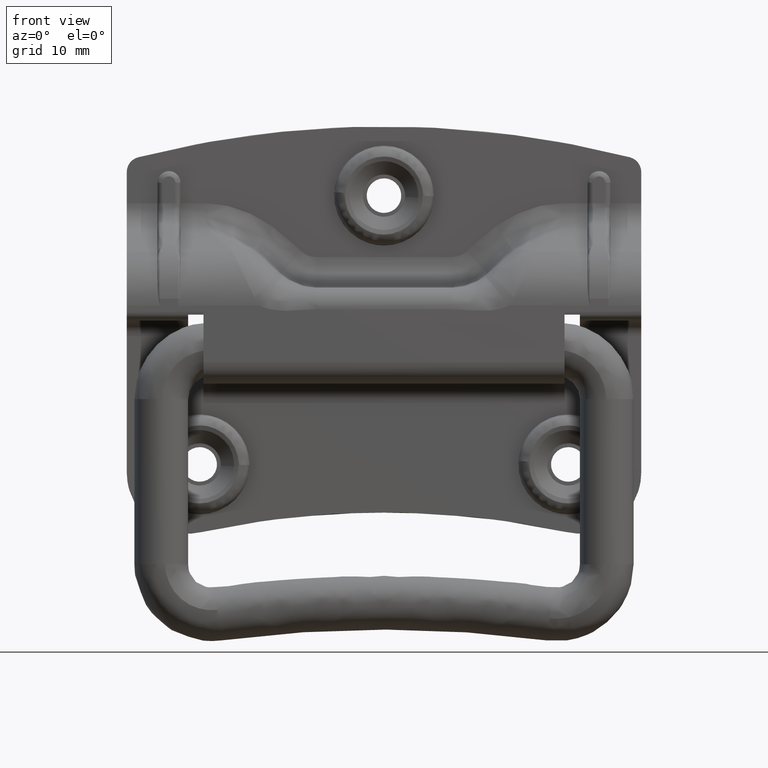
[diagram: clean part render]
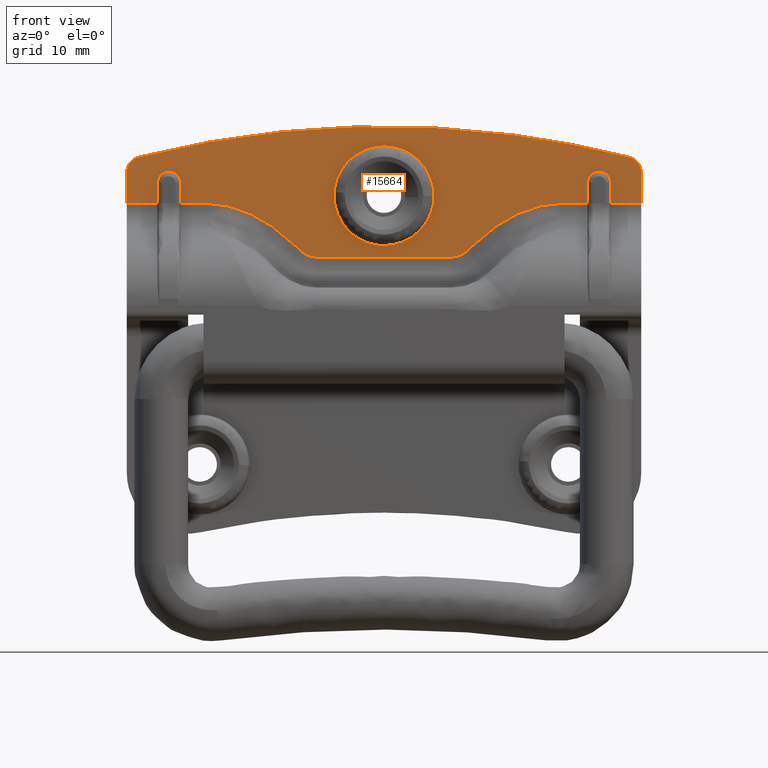
[diagram: same view with one face highlighted and labeled with its STEP entity id]
A machine part, front view. The second image highlights one B-rep face of the part: STEP entity #15664.
In plain terms, the highlighted face is a freeform B-spline surface patch.
Its self-contained STEP definition (entity closure, byte-faithful):
#4870=CARTESIAN_POINT('',(-6.484176879962403,4.899999999447596,20.453266135246739));
#4871=VERTEX_POINT('',#4870);
#4885=CARTESIAN_POINT('',(-1.776357E-014,4.900000000000000,13.500000000000300));
#4886=VERTEX_POINT('',#4885);
#4887=CARTESIAN_POINT('',(-6.484176879962403,4.899999999447596,20.453266135246732));
#4888=CARTESIAN_POINT('',(-6.500000000000017,4.899999999999999,20.226909253192016));
#4889=CARTESIAN_POINT('',(-6.500000000000017,4.900000000000000,20.000000000000298));
#4890=CARTESIAN_POINT('',(-6.500000000000017,4.899999999999999,13.500000000000302));
#4891=CARTESIAN_POINT('',(-1.776357E-014,4.900000000000000,13.500000000000300));
#4899=(BOUNDED_CURVE()B_SPLINE_CURVE(2,(#4887,#4888,#4889,#4890,#4891),.UNSPECIFIED.,.F.,.U.)B_SPLINE_CURVE_WITH_KNOTS((3,2,3),(0.737833686534813,0.750000000000000,1.0),.UNSPECIFIED.)CURVE()GEOMETRIC_REPRESENTATION_ITEM()RATIONAL_B_SPLINE_CURVE((0.972879876386386,0.985746277152352,1.0,0.707106781186547,1.0))REPRESENTATION_ITEM(''));
#4900=EDGE_CURVE('',#4871,#4886,#4899,.T.);
#4902=CARTESIAN_POINT('',(6.499486787324579,4.899999999445297,19.918320740742029));
#4903=VERTEX_POINT('',#4902);
#4904=CARTESIAN_POINT('',(-1.776357E-014,4.900000000000000,13.500000000000300));
#4905=CARTESIAN_POINT('',(6.418827544364976,4.900000000000000,13.500000000000302));
#4906=CARTESIAN_POINT('',(6.499486787324579,4.899999999445297,19.918320740742029));
#4914=(BOUNDED_CURVE()B_SPLINE_CURVE(2,(#4904,#4905,#4906),.UNSPECIFIED.,.F.,.U.)B_SPLINE_CURVE_WITH_KNOTS((3,3),(0.0,0.247784295920836),.UNSPECIFIED.)CURVE()GEOMETRIC_REPRESENTATION_ITEM()RATIONAL_B_SPLINE_CURVE((1.0,0.709702639985285,0.994854295641960))REPRESENTATION_ITEM(''));
#4915=EDGE_CURVE('',#4886,#4903,#4914,.T.);
#5002=CARTESIAN_POINT('',(-1.776357E-014,4.900000000000000,26.500000000000298));
#5003=VERTEX_POINT('',#5002);
#5004=CARTESIAN_POINT('',(6.499486787324579,4.899999999445297,19.918320740742029));
#5005=CARTESIAN_POINT('',(6.499999999999981,4.900000000000000,19.959158758036533));
#5006=CARTESIAN_POINT('',(6.499999999999982,4.900000000000000,20.000000000000298));
#5007=CARTESIAN_POINT('',(6.499999999999983,4.899999999999999,26.500000000000302));
#5008=CARTESIAN_POINT('',(-1.776357E-014,4.900000000000000,26.500000000000298));
#5016=(BOUNDED_CURVE()B_SPLINE_CURVE(2,(#5004,#5005,#5006,#5007,#5008),.UNSPECIFIED.,.F.,.U.)B_SPLINE_CURVE_WITH_KNOTS((3,2,3),(0.247784295920836,0.250000000000000,0.500000000000000),.UNSPECIFIED.)CURVE()GEOMETRIC_REPRESENTATION_ITEM()RATIONAL_B_SPLINE_CURVE((0.994854295641960,0.997404141201263,1.0,0.707106781186547,1.0))REPRESENTATION_ITEM(''));
#5017=EDGE_CURVE('',#4903,#5003,#5016,.T.);
#5019=CARTESIAN_POINT('',(-1.776357E-014,4.900000000000000,26.500000000000298));
#5020=CARTESIAN_POINT('',(-6.061489507221645,4.900000000000000,26.500000000000306));
#5021=CARTESIAN_POINT('',(-6.484176879962403,4.899999999447596,20.453266135246732));
#5029=(BOUNDED_CURVE()B_SPLINE_CURVE(2,(#5019,#5020,#5021),.UNSPECIFIED.,.F.,.U.)B_SPLINE_CURVE_WITH_KNOTS((3,3),(0.500000000000000,0.737833686534812),.UNSPECIFIED.)CURVE()GEOMETRIC_REPRESENTATION_ITEM()RATIONAL_B_SPLINE_CURVE((1.0,0.721360504034197,0.972879876386384))REPRESENTATION_ITEM(''));
#5030=EDGE_CURVE('',#5003,#4871,#5029,.T.);
#5543=CARTESIAN_POINT('',(-31.992187500000000,4.900000000000000,25.001983869163450));
#5544=VERTEX_POINT('',#5543);
#5545=CARTESIAN_POINT('',(31.992187500000050,4.900000000000000,25.001983869163400));
#5546=VERTEX_POINT('',#5545);
#5547=CARTESIAN_POINT('',(-31.992187500000000,4.900000000000000,25.001983869163450));
#5548=CARTESIAN_POINT('',(2.775558E-014,4.900000000000000,33.124872331760066));
#5549=CARTESIAN_POINT('',(31.992187500000050,4.900000000000000,25.001983869163400));
#5557=(BOUNDED_CURVE()B_SPLINE_CURVE(2,(#5547,#5548,#5549),.UNSPECIFIED.,.F.,.U.)CURVE()GEOMETRIC_REPRESENTATION_ITEM()QUASI_UNIFORM_CURVE()RATIONAL_B_SPLINE_CURVE((1.0,0.969246029762793,1.0))REPRESENTATION_ITEM(''));
#5558=EDGE_CURVE('',#5544,#5546,#5557,.T.);
#5604=CARTESIAN_POINT('',(-33.500000000000000,4.900000000000000,23.063491809637849));
#5605=VERTEX_POINT('',#5604);
#5606=CARTESIAN_POINT('',(-33.500000000000000,4.900000000000000,23.063491809637849));
#5607=CARTESIAN_POINT('',(-33.500000000000000,4.900000000000000,24.619146879351177));
#5608=CARTESIAN_POINT('',(-31.992187500000000,4.900000000000000,25.001983869163439));
#5616=(BOUNDED_CURVE()B_SPLINE_CURVE(2,(#5606,#5607,#5608),.UNSPECIFIED.,.F.,.U.)CURVE()GEOMETRIC_REPRESENTATION_ITEM()QUASI_UNIFORM_CURVE()RATIONAL_B_SPLINE_CURVE((1.0,0.789333183769692,1.0))REPRESENTATION_ITEM(''));
#5617=EDGE_CURVE('',#5605,#5544,#5616,.T.);
#5657=CARTESIAN_POINT('',(33.500000000000000,4.900000000000000,23.063500000000300));
#5658=VERTEX_POINT('',#5657);
#5659=CARTESIAN_POINT('',(31.992187500000050,4.900000000000000,25.001983869163421));
#5660=CARTESIAN_POINT('',(33.499993629320720,4.900000000000000,24.619148496880943));
#5661=CARTESIAN_POINT('',(33.500000000000000,4.900000000000000,23.063500000000300));
#5669=(BOUNDED_CURVE()B_SPLINE_CURVE(2,(#5659,#5660,#5661),.UNSPECIFIED.,.F.,.U.)CURVE()GEOMETRIC_REPRESENTATION_ITEM()QUASI_UNIFORM_CURVE()RATIONAL_B_SPLINE_CURVE((1.0,0.789334440917190,1.0))REPRESENTATION_ITEM(''));
#5670=EDGE_CURVE('',#5546,#5658,#5669,.T.);
#7373=CARTESIAN_POINT('',(-29.500000000000000,4.900000000000000,19.000000000000501));
#7374=VERTEX_POINT('',#7373);
#7434=CARTESIAN_POINT('',(-29.500000000000000,4.900000000000000,21.699999999999999));
#7435=VERTEX_POINT('',#7434);
#7449=CARTESIAN_POINT('',(-29.500000000000000,4.900000000000000,19.000000000000501));
#7450=CARTESIAN_POINT('',(-29.500000000000000,4.900000000000000,21.699999999999999));
#7451=QUASI_UNIFORM_CURVE('',1,(#7449,#7450),.UNSPECIFIED.,.F.,.U.);
#7452=EDGE_CURVE('',#7374,#7435,#7451,.T.);
#7488=CARTESIAN_POINT('',(-26.500000000000000,4.900000000000000,21.699999999999999));
#7489=VERTEX_POINT('',#7488);
#7503=CARTESIAN_POINT('',(-29.500000000000000,4.900000000000000,21.699999999999999));
#7504=CARTESIAN_POINT('',(-29.500000000000011,4.900000000000000,23.200000000000006));
#7505=CARTESIAN_POINT('',(-28.0,4.900000000000000,23.199999999999999));
#7506=CARTESIAN_POINT('',(-26.500000000000000,4.900000000000000,23.200000000000006));
#7507=CARTESIAN_POINT('',(-26.500000000000000,4.900000000000000,21.699999999999999));
#7515=(BOUNDED_CURVE()B_SPLINE_CURVE(2,(#7503,#7504,#7505,#7506,#7507),.UNSPECIFIED.,.F.,.U.)B_SPLINE_CURVE_WITH_KNOTS((3,2,3),(0.0,0.500000000000000,1.0),.UNSPECIFIED.)CURVE()GEOMETRIC_REPRESENTATION_ITEM()RATIONAL_B_SPLINE_CURVE((1.0,0.707106781186548,1.0,0.707106781186548,1.0))REPRESENTATION_ITEM(''));
#7516=EDGE_CURVE('',#7435,#7489,#7515,.T.);
#7553=CARTESIAN_POINT('',(-26.500000000000000,4.900000000000000,19.000000000000501));
#7554=VERTEX_POINT('',#7553);
#7568=CARTESIAN_POINT('',(-26.500000000000000,4.900000000000000,19.000000000000501));
#7569=CARTESIAN_POINT('',(-26.500000000000000,4.900000000000000,21.699999999999999));
#7570=QUASI_UNIFORM_CURVE('',1,(#7568,#7569),.UNSPECIFIED.,.F.,.U.);
#7571=EDGE_CURVE('',#7554,#7489,#7570,.T.);
#7751=CARTESIAN_POINT('',(29.500000000000000,4.900000000000000,19.000000000000501));
#7752=VERTEX_POINT('',#7751);
#7814=CARTESIAN_POINT('',(29.500000000000000,4.900000000000000,21.699999999999999));
#7815=VERTEX_POINT('',#7814);
#7839=CARTESIAN_POINT('',(29.500000000000000,4.900000000000000,19.000000000000501));
#7840=CARTESIAN_POINT('',(29.500000000000000,4.900000000000000,21.699999999999999));
#7841=QUASI_UNIFORM_CURVE('',1,(#7839,#7840),.UNSPECIFIED.,.F.,.U.);
#7842=EDGE_CURVE('',#7752,#7815,#7841,.T.);
#7870=CARTESIAN_POINT('',(26.500000000000000,4.900000000000000,21.699999999999999));
#7871=VERTEX_POINT('',#7870);
#7905=CARTESIAN_POINT('',(26.500000000000000,4.900000000000000,21.699999999999999));
#7906=CARTESIAN_POINT('',(26.500000000000000,4.900000000000000,23.200000000000006));
#7907=CARTESIAN_POINT('',(28.0,4.900000000000000,23.199999999999999));
#7908=CARTESIAN_POINT('',(29.500000000000011,4.900000000000000,23.200000000000006));
#7909=CARTESIAN_POINT('',(29.500000000000000,4.900000000000000,21.699999999999999));
#7917=(BOUNDED_CURVE()B_SPLINE_CURVE(2,(#7905,#7906,#7907,#7908,#7909),.UNSPECIFIED.,.F.,.U.)B_SPLINE_CURVE_WITH_KNOTS((3,2,3),(0.0,0.500000000000000,1.0),.UNSPECIFIED.)CURVE()GEOMETRIC_REPRESENTATION_ITEM()RATIONAL_B_SPLINE_CURVE((1.0,0.707106781186548,1.0,0.707106781186548,1.0))REPRESENTATION_ITEM(''));
#7918=EDGE_CURVE('',#7871,#7815,#7917,.T.);
#7937=CARTESIAN_POINT('',(26.500000000000000,4.900000000000000,19.000000000000501));
#7938=VERTEX_POINT('',#7937);
#7962=CARTESIAN_POINT('',(26.500000000000000,4.900000000000000,19.000000000000501));
#7963=CARTESIAN_POINT('',(26.500000000000000,4.900000000000000,21.699999999999999));
#7964=QUASI_UNIFORM_CURVE('',1,(#7962,#7963),.UNSPECIFIED.,.F.,.U.);
#7965=EDGE_CURVE('',#7938,#7871,#7964,.T.);
#11702=CARTESIAN_POINT('',(-33.500000000000000,4.900000000000000,19.000000000000501));
#11703=VERTEX_POINT('',#11702);
#11704=CARTESIAN_POINT('',(-33.500000000000000,4.900000000000000,19.000000000000501));
#11705=CARTESIAN_POINT('',(-29.500000000000000,4.900000000000000,19.000000000000501));
#11706=QUASI_UNIFORM_CURVE('',1,(#11704,#11705),.UNSPECIFIED.,.F.,.U.);
#11707=EDGE_CURVE('',#11703,#7374,#11706,.T.);
#11747=CARTESIAN_POINT('',(23.044909024048799,4.900000000000000,19.000000000000501));
#11748=VERTEX_POINT('',#11747);
#11749=CARTESIAN_POINT('',(23.044909024048799,4.900000000000000,19.000000000000501));
#11750=CARTESIAN_POINT('',(26.500000000000000,4.900000000000000,19.000000000000501));
#11751=QUASI_UNIFORM_CURVE('',1,(#11749,#11750),.UNSPECIFIED.,.F.,.U.);
#11752=EDGE_CURVE('',#11748,#7938,#11751,.T.);
#11803=CARTESIAN_POINT('',(14.621570600800720,4.900000000000000,16.047429772806250));
#11804=VERTEX_POINT('',#11803);
#11834=CARTESIAN_POINT('',(14.621570600800720,4.900000000000000,16.047429772806250));
#11835=CARTESIAN_POINT('',(18.864427850585564,4.900000000000071,19.000000000000487));
#11836=CARTESIAN_POINT('',(23.044909024048799,4.900000000000000,19.000000000000501));
#11844=(BOUNDED_CURVE()B_SPLINE_CURVE(2,(#11834,#11835,#11836),.UNSPECIFIED.,.F.,.U.)CURVE()GEOMETRIC_REPRESENTATION_ITEM()QUASI_UNIFORM_CURVE()RATIONAL_B_SPLINE_CURVE((1.0,0.932080820835375,1.0))REPRESENTATION_ITEM(''));
#11845=EDGE_CURVE('',#11804,#11748,#11844,.T.);
#11908=CARTESIAN_POINT('',(11.636005139910580,4.900000000000000,13.550917245347099));
#11909=VERTEX_POINT('',#11908);
#11939=CARTESIAN_POINT('',(11.636005139910599,4.900000000000000,13.550917245347099));
#11940=CARTESIAN_POINT('',(11.875324216928719,4.900000000000000,13.770294696992311));
#11941=CARTESIAN_POINT('',(12.115161219023809,4.900000000000000,13.989052764915590));
#11942=CARTESIAN_POINT('',(12.598193175554529,4.899999999999999,14.422553144214930));
#11943=CARTESIAN_POINT('',(12.841395497820580,4.900000000000000,14.637286644443559));
#11944=CARTESIAN_POINT('',(13.580878094601321,4.900000000000000,15.269676934102550));
#11945=CARTESIAN_POINT('',(14.087072828556380,4.899999999999998,15.675477076573230));
#11946=CARTESIAN_POINT('',(14.621570600800739,4.900000000000000,16.047429772806250));
#11947=B_SPLINE_CURVE_WITH_KNOTS('',3,(#11939,#11940,#11941,#11942,#11943,#11944,#11945,#11946),.UNSPECIFIED.,.F.,.U.,(4,2,2,4),(0.0,0.250000000000000,0.500000000000000,1.0),.UNSPECIFIED.);
#11948=EDGE_CURVE('',#11909,#11804,#11947,.T.);
#11967=CARTESIAN_POINT('',(10.804332605041900,4.900000000000000,12.788545086904501));
#11968=VERTEX_POINT('',#11967);
#11990=CARTESIAN_POINT('',(10.804332605041900,4.900000000000000,12.788545086904501));
#11991=CARTESIAN_POINT('',(11.636005139910580,4.900000000000000,13.550917245347099));
#11992=QUASI_UNIFORM_CURVE('',1,(#11990,#11991),.UNSPECIFIED.,.F.,.U.);
#11993=EDGE_CURVE('',#11968,#11909,#11992,.T.);
#12027=CARTESIAN_POINT('',(8.777150529513211,4.900000000000000,12.000000000000201));
#12028=VERTEX_POINT('',#12027);
#12058=CARTESIAN_POINT('',(8.777150529513211,4.900000000000000,12.000000000000201));
#12059=CARTESIAN_POINT('',(9.944107996861600,4.900000000000000,12.000000000000004));
#12060=CARTESIAN_POINT('',(10.804332605041900,4.900000000000000,12.788545086904501));
#12068=(BOUNDED_CURVE()B_SPLINE_CURVE(2,(#12058,#12059,#12060),.UNSPECIFIED.,.F.,.U.)CURVE()GEOMETRIC_REPRESENTATION_ITEM()QUASI_UNIFORM_CURVE()RATIONAL_B_SPLINE_CURVE((1.0,0.931974151384721,1.0))REPRESENTATION_ITEM(''));
#12069=EDGE_CURVE('',#12028,#11968,#12068,.T.);
#12088=CARTESIAN_POINT('',(-8.777150529513211,4.900000000000000,12.000000000000201));
#12089=VERTEX_POINT('',#12088);
#12111=CARTESIAN_POINT('',(-8.777150529513211,4.900000000000000,12.000000000000201));
#12112=CARTESIAN_POINT('',(8.777150529513211,4.900000000000000,12.000000000000201));
#12113=QUASI_UNIFORM_CURVE('',1,(#12111,#12112),.UNSPECIFIED.,.F.,.U.);
#12114=EDGE_CURVE('',#12089,#12028,#12113,.T.);
#12148=CARTESIAN_POINT('',(-10.804332605041919,4.900000000000000,12.788545086904501));
#12149=VERTEX_POINT('',#12148);
#12179=CARTESIAN_POINT('',(-10.804332605041919,4.900000000000000,12.788545086904501));
#12180=CARTESIAN_POINT('',(-9.944107996861611,4.900000000000000,12.000000000000007));
#12181=CARTESIAN_POINT('',(-8.777150529513211,4.900000000000000,12.000000000000201));
#12189=(BOUNDED_CURVE()B_SPLINE_CURVE(2,(#12179,#12180,#12181),.UNSPECIFIED.,.F.,.U.)CURVE()GEOMETRIC_REPRESENTATION_ITEM()QUASI_UNIFORM_CURVE()RATIONAL_B_SPLINE_CURVE((1.0,0.931974151384720,1.0))REPRESENTATION_ITEM(''));
#12190=EDGE_CURVE('',#12149,#12089,#12189,.T.);
#12209=CARTESIAN_POINT('',(-11.636005139910580,4.900000000000000,13.550917245347099));
#12210=VERTEX_POINT('',#12209);
#12232=CARTESIAN_POINT('',(-11.636005139910580,4.900000000000000,13.550917245347099));
#12233=CARTESIAN_POINT('',(-10.804332605041919,4.900000000000000,12.788545086904501));
#12234=QUASI_UNIFORM_CURVE('',1,(#12232,#12233),.UNSPECIFIED.,.F.,.U.);
#12235=EDGE_CURVE('',#12210,#12149,#12234,.T.);
#12298=CARTESIAN_POINT('',(-14.621570614275200,4.900000000000000,16.047429782183048));
#12299=VERTEX_POINT('',#12298);
#12329=CARTESIAN_POINT('',(-14.621570614275200,4.900000000000000,16.047429782183048));
#12330=CARTESIAN_POINT('',(-14.087072839327780,4.900000000000000,15.675477084967561));
#12331=CARTESIAN_POINT('',(-13.580878103018760,4.900000000000001,15.269676941071291));
#12332=CARTESIAN_POINT('',(-12.841395502959960,4.900000000000000,14.637286648953509));
#12333=CARTESIAN_POINT('',(-12.598193179642299,4.899999999999999,14.422553147853179));
#12334=CARTESIAN_POINT('',(-12.115161221046771,4.899999999999998,13.989052766761469));
#12335=CARTESIAN_POINT('',(-11.875324217938280,4.899999999999999,13.770294697917761));
#12336=CARTESIAN_POINT('',(-11.636005139910580,4.900000000000000,13.550917245347099));
#12337=B_SPLINE_CURVE_WITH_KNOTS('',3,(#12329,#12330,#12331,#12332,#12333,#12334,#12335,#12336),.UNSPECIFIED.,.F.,.U.,(4,2,2,4),(0.0,0.500000000000000,0.750000000000000,1.0),.UNSPECIFIED.);
#12338=EDGE_CURVE('',#12299,#12210,#12337,.T.);
#12401=CARTESIAN_POINT('',(-23.044909024048700,4.900000000000000,19.000000000000551));
#12402=VERTEX_POINT('',#12401);
#12432=CARTESIAN_POINT('',(-23.044909024048689,4.900000000000071,19.000000000000561));
#12433=CARTESIAN_POINT('',(-18.864427858226350,4.900000000000071,19.000000000000547));
#12434=CARTESIAN_POINT('',(-14.621570614275200,4.900000000000000,16.047429782183048));
#12442=(BOUNDED_CURVE()B_SPLINE_CURVE(2,(#12432,#12433,#12434),.UNSPECIFIED.,.F.,.U.)CURVE()GEOMETRIC_REPRESENTATION_ITEM()QUASI_UNIFORM_CURVE()RATIONAL_B_SPLINE_CURVE((1.0,0.932080821058934,1.0))REPRESENTATION_ITEM(''));
#12443=EDGE_CURVE('',#12402,#12299,#12442,.T.);
#12469=CARTESIAN_POINT('',(-26.500000000000000,4.900000000000000,19.000000000000501));
#12470=CARTESIAN_POINT('',(-23.044909024048700,4.900000000000000,19.000000000000551));
#12471=QUASI_UNIFORM_CURVE('',1,(#12469,#12470),.UNSPECIFIED.,.F.,.U.);
#12472=EDGE_CURVE('',#7554,#12402,#12471,.T.);
#12491=CARTESIAN_POINT('',(33.500000000000000,4.900000000000000,19.000000000000501));
#12492=VERTEX_POINT('',#12491);
#12508=CARTESIAN_POINT('',(29.500000000000000,4.900000000000000,19.000000000000501));
#12509=CARTESIAN_POINT('',(33.500000000000000,4.900000000000000,19.000000000000501));
#12510=QUASI_UNIFORM_CURVE('',1,(#12508,#12509),.UNSPECIFIED.,.F.,.U.);
#12511=EDGE_CURVE('',#7752,#12492,#12510,.T.);
#15521=CARTESIAN_POINT('',(-33.500000000000000,4.900000000000000,19.000000000000501));
#15522=CARTESIAN_POINT('',(-33.500000000000000,4.900000000000000,23.063491809637849));
#15523=QUASI_UNIFORM_CURVE('',1,(#15521,#15522),.UNSPECIFIED.,.F.,.U.);
#15524=EDGE_CURVE('',#11703,#5605,#15523,.T.);
#15574=CARTESIAN_POINT('',(33.500000000000000,4.900000000000000,19.000000000000501));
#15575=CARTESIAN_POINT('',(33.500000000000000,4.900000000000000,23.063500000000300));
#15576=QUASI_UNIFORM_CURVE('',1,(#15574,#15575),.UNSPECIFIED.,.F.,.U.);
#15577=EDGE_CURVE('',#12492,#5658,#15576,.T.);
#15627=CARTESIAN_POINT('',(-36.846649870141000,4.900000000000000,29.849149967050838));
#15628=CARTESIAN_POINT('',(-36.846649870141000,4.900000000000000,11.150849576973970));
#15629=CARTESIAN_POINT('',(36.846651667221039,4.900000000000000,29.849149967050838));
#15630=CARTESIAN_POINT('',(36.846651667221039,4.900000000000000,11.150849576973970));
#15631=B_SPLINE_SURFACE_WITH_KNOTS('',1,1,((#15627,#15629),(#15628,#15630)),.UNSPECIFIED.,.F.,.F.,.U.,(2,2),(2,2),(0.0,18.698300390076870),(0.0,73.693301537362032),.UNSPECIFIED.);
#15632=ORIENTED_EDGE('',*,*,#5617,.F.);
#15633=ORIENTED_EDGE('',*,*,#15524,.F.);
#15634=ORIENTED_EDGE('',*,*,#11707,.T.);
#15635=ORIENTED_EDGE('',*,*,#7452,.T.);
#15636=ORIENTED_EDGE('',*,*,#7516,.T.);
#15637=ORIENTED_EDGE('',*,*,#7571,.F.);
#15638=ORIENTED_EDGE('',*,*,#12472,.T.);
#15639=ORIENTED_EDGE('',*,*,#12443,.T.);
#15640=ORIENTED_EDGE('',*,*,#12338,.T.);
#15641=ORIENTED_EDGE('',*,*,#12235,.T.);
#15642=ORIENTED_EDGE('',*,*,#12190,.T.);
#15643=ORIENTED_EDGE('',*,*,#12114,.T.);
#15644=ORIENTED_EDGE('',*,*,#12069,.T.);
#15645=ORIENTED_EDGE('',*,*,#11993,.T.);
#15646=ORIENTED_EDGE('',*,*,#11948,.T.);
#15647=ORIENTED_EDGE('',*,*,#11845,.T.);
#15648=ORIENTED_EDGE('',*,*,#11752,.T.);
#15649=ORIENTED_EDGE('',*,*,#7965,.T.);
#15650=ORIENTED_EDGE('',*,*,#7918,.T.);
#15651=ORIENTED_EDGE('',*,*,#7842,.F.);
#15652=ORIENTED_EDGE('',*,*,#12511,.T.);
#15653=ORIENTED_EDGE('',*,*,#15577,.T.);
#15654=ORIENTED_EDGE('',*,*,#5670,.F.);
#15655=ORIENTED_EDGE('',*,*,#5558,.F.);
#15656=EDGE_LOOP('',(#15632,#15633,#15634,#15635,#15636,#15637,#15638,#15639,#15640,#15641,#15642,#15643,#15644,#15645,#15646,#15647,#15648,#15649,#15650,#15651,#15652,#15653,#15654,#15655));
#15657=FACE_OUTER_BOUND('',#15656,.T.);
#15658=ORIENTED_EDGE('',*,*,#4915,.F.);
#15659=ORIENTED_EDGE('',*,*,#4900,.F.);
#15660=ORIENTED_EDGE('',*,*,#5030,.F.);
#15661=ORIENTED_EDGE('',*,*,#5017,.F.);
#15662=EDGE_LOOP('',(#15658,#15659,#15660,#15661));
#15663=FACE_BOUND('',#15662,.T.);
#15664=ADVANCED_FACE('',(#15657,#15663),#15631,.T.);